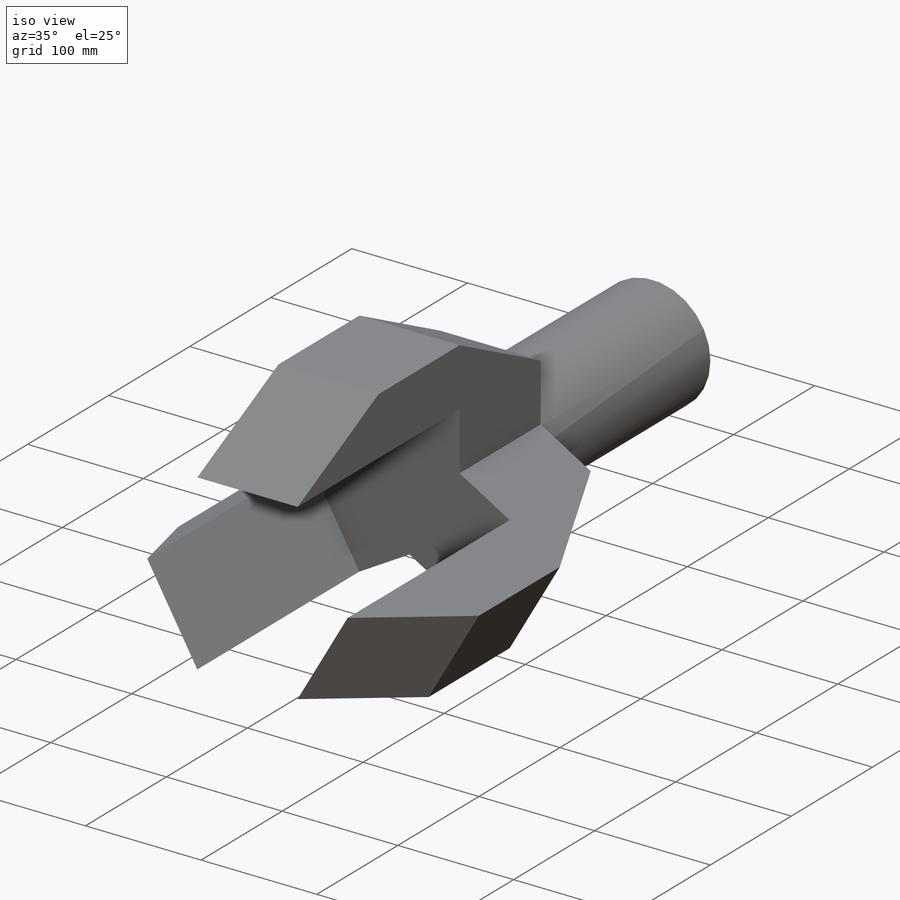
[diagram: iso view]
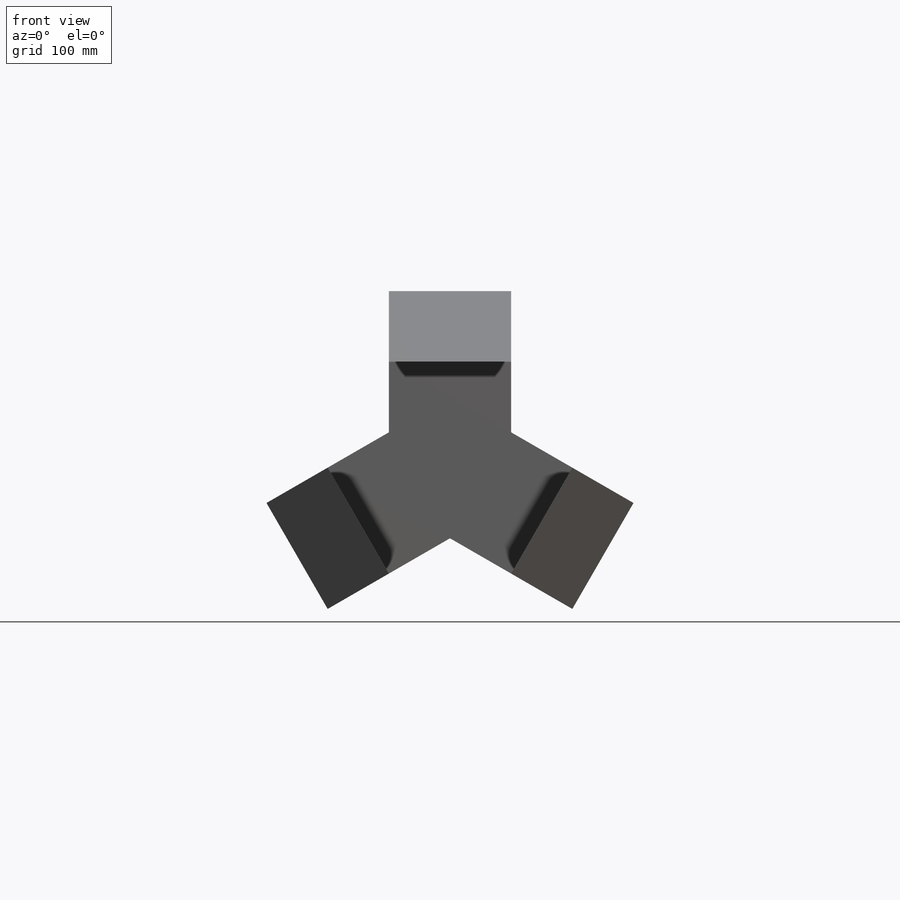
[diagram: front view]
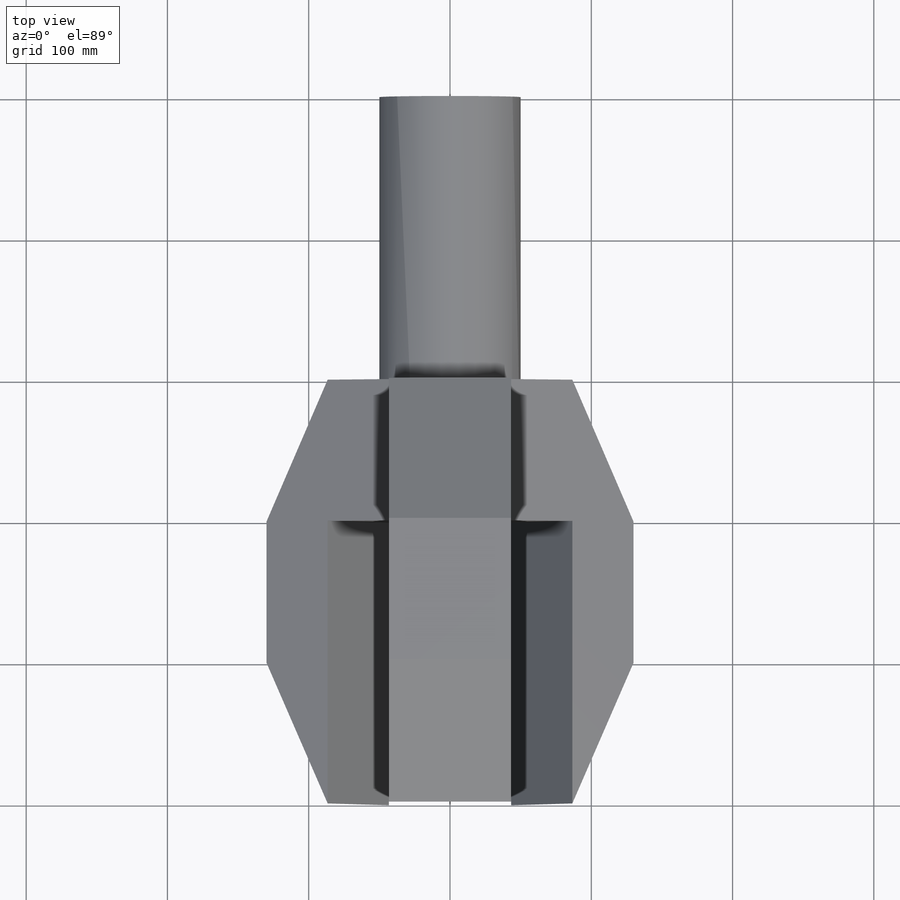
[diagram: top view]
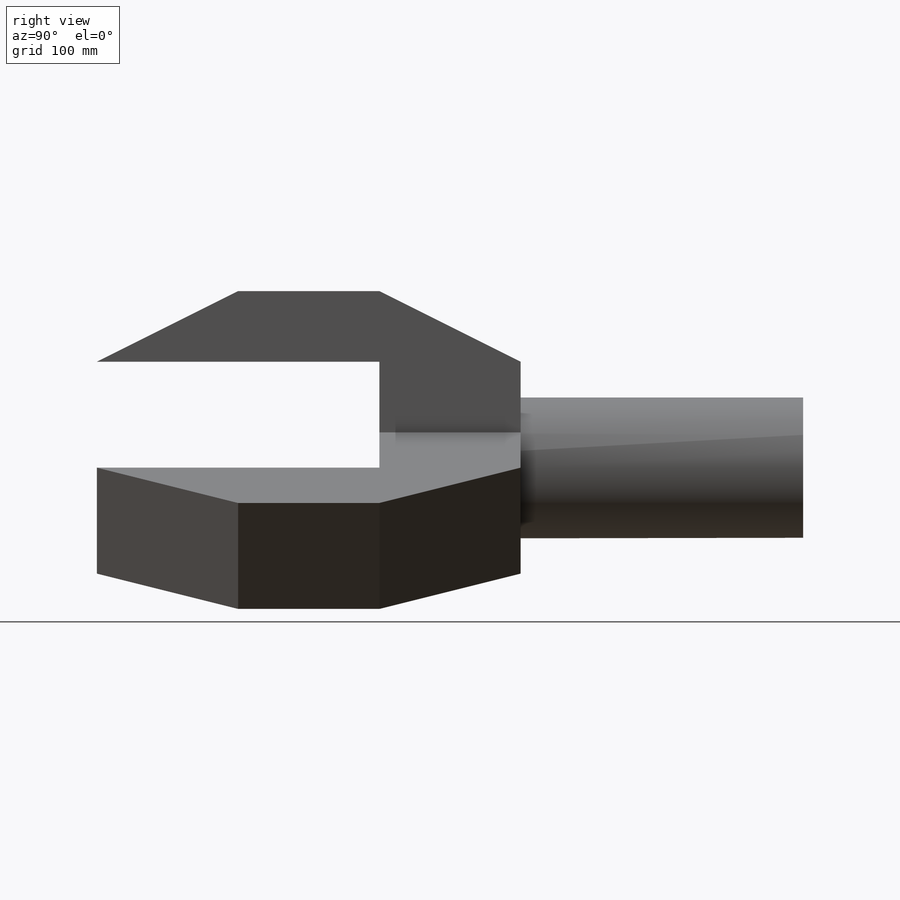
[diagram: right view]
SOLIDWORKS PART (.sldprt)
format: sldprt  version: not decoded by parser v0  size: 210,944 bytes
history: native  units: mm
features: sketch x3, extrude x3, material x1, pattern_circular x1 (+13 scaffold rows collapsed)
feature tree (21):
  scaffold x13  (default folders/planes/origin — collapsed)
  material  "Brass"
  sketch  "Sketch1"  dims[D1=100.0mm]
  extrude  "Boss-Extrude1"  Depth=200mm
  sketch  "Sketch2"  dims[c1.D1=50.0mm c1.D2=25.0mm c1.D3=50.0mm c1.D4=50.0mm c1.D5=50.0mm c2.D1=~86.60254mm c3.D1=60.0deg c3.D2=~86.60254mm c4.D2=60.0deg c4.D6=75.0mm c5.D6=60.0deg c6.D6=50.0mm c6.D7=25.0mm c6.D1=~43.30127mm c7.D1=120.0deg c7.D6=~43.30127mm c8.D6=120.0deg c8.D7=25.0mm c8.D1=50.0mm c9.D1=60.0deg c9.D2=50.0mm c10.D2=120.0deg c10.D4=50.0mm c11.D4=30.0deg c11.D5=~86.60254mm c12.D4=25.0mm c12.D3=75.0mm c13.D4=25.0mm c13.D5=~86.60254mm c14.D5=30.0deg]
  extrude  "Boss-Extrude2"  Depth=100mm
  sketch  "Sketch3"  dims[c1.D1=100.0mm c2.D1=30.0deg c3.D1=50.0mm c3.D2=~92.919296mm c4.D1=50.0mm c4.D2=100.0mm c4.D3=100.0mm c4.D4=100.0mm c4.D5=300.0mm]
  extrude  "Boss-Extrude4"  [1 undecoded]
  pattern_circular  "CirPattern1"  Count=3 Angle=120deg
decode coverage: 6 of 7 modeling features carry decoded parameters
note: ~ marks probable driven/reference dimensions
note: 1 parameter value undecoded
note: suppression state not decoded; provenance and decode notes live in map.json
